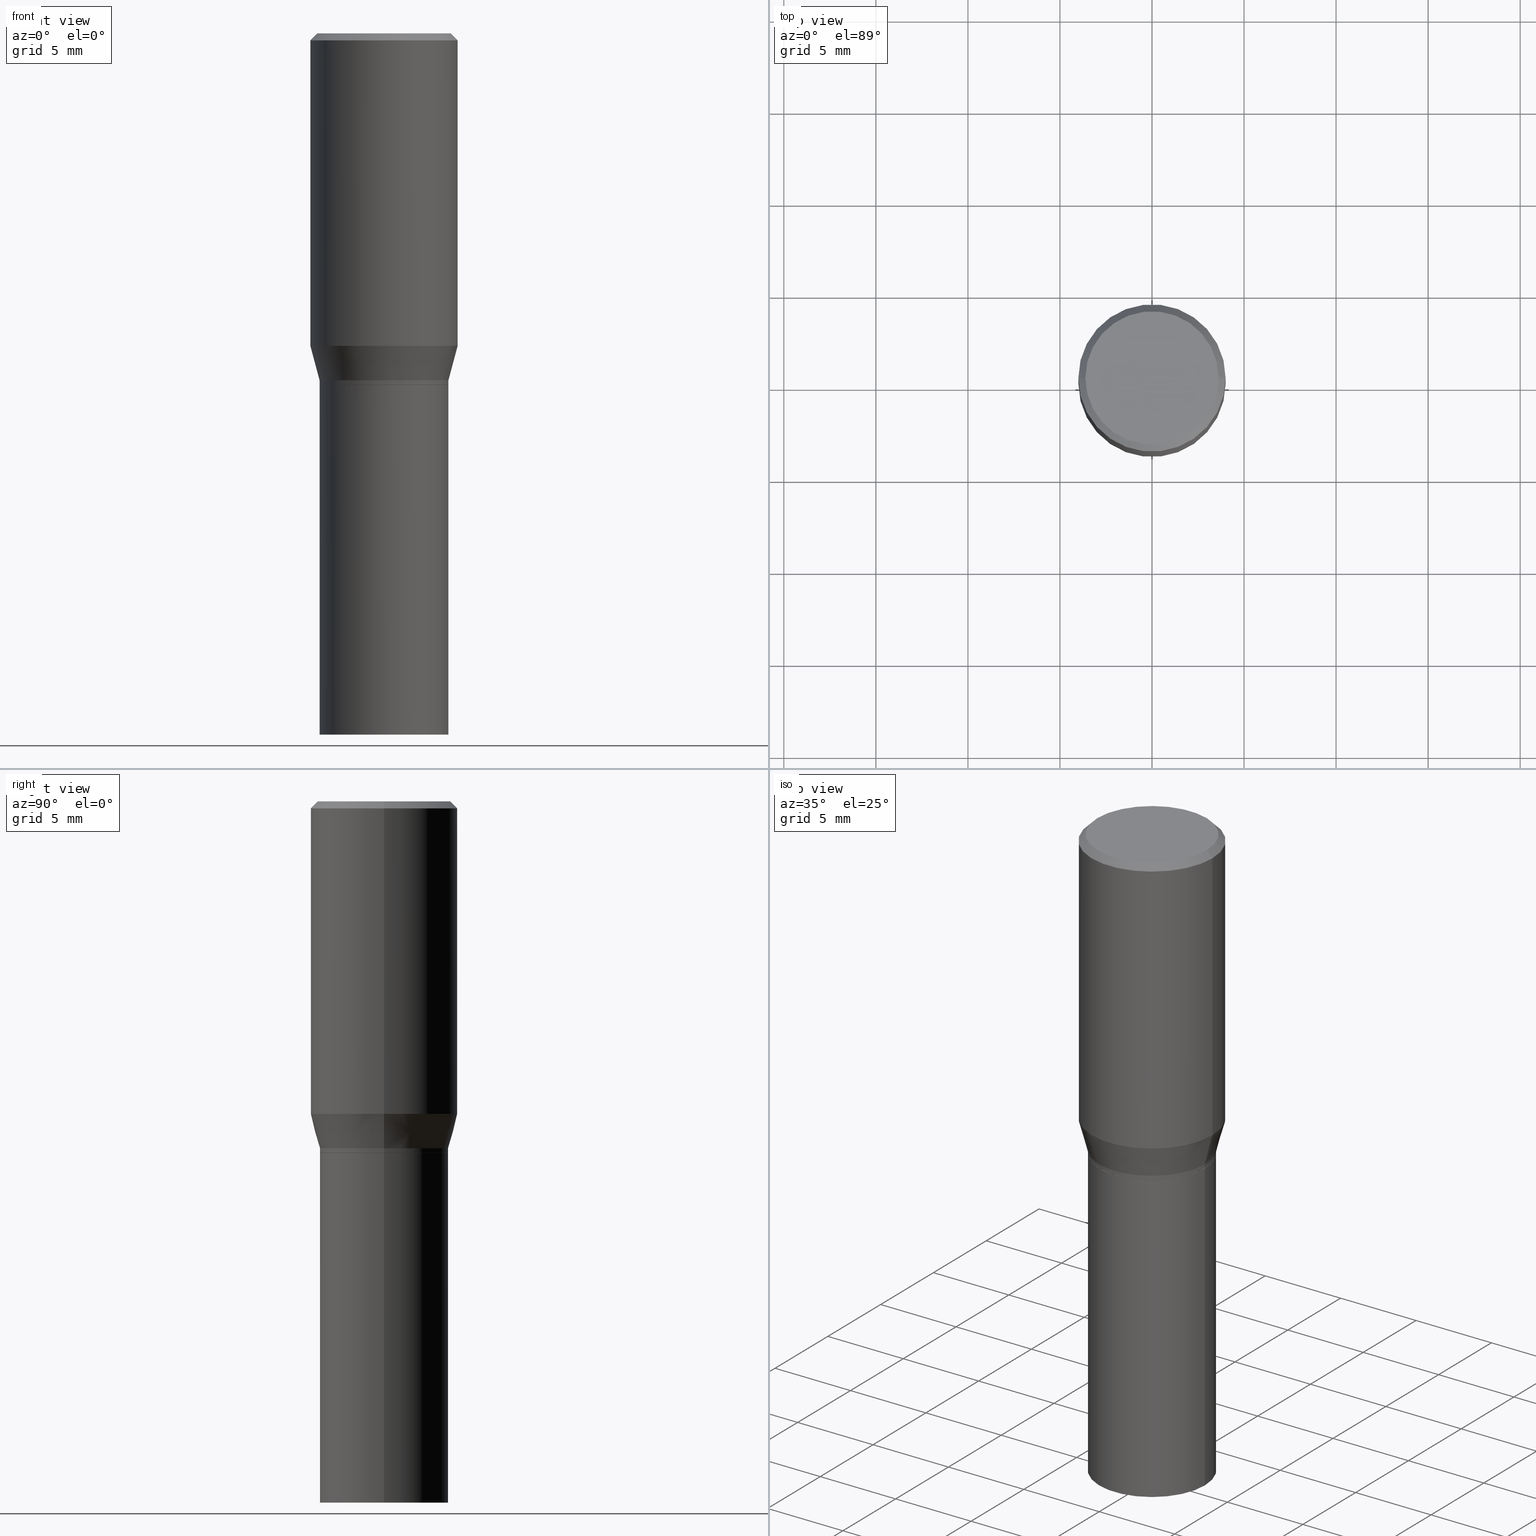
[diagram: canonical four-view strip — front | top / right | iso, engineering-drawing reading convention]
A machine part, canonical four-view strip (front | top / right | iso — engineering-drawing reading convention). The complete STEP part file that produces these views, byte-faithful:
ISO-10303-21;
HEADER;
FILE_DESCRIPTION (( 'STEP AP203' ),
    '1' );
FILE_NAME ('40345.STEP',
    '2024-03-12T19:12:00',
    ( '' ),
    ( '' ),
    'SwSTEP 2.0',
    'SolidWorks 2023',
    '' );
FILE_SCHEMA (( 'CONFIG_CONTROL_DESIGN' ));
ENDSEC;

DATA;
#1 = FACE_OUTER_BOUND ( 'NONE', #12, .T. ) ;
#2 = CARTESIAN_POINT ( 'NONE',  ( -0.1378000000000000336, 9.791278898774182947E-16, -6.778292554371261435E-30 ) ) ;
#3 = ADVANCED_FACE ( 'NONE', ( #30 ), #376, .T. ) ;
#4 = AXIS2_PLACEMENT_3D ( 'NONE', #62, #185, #423 ) ;
#5 = CIRCLE ( 'NONE', #394, 0.1575000000000000289 ) ;
#6 = DIRECTION ( 'NONE',  ( -2.445468806185136597E-29, 3.491481338843145583E-15, 1.000000000000000000 ) ) ;
#7 = CARTESIAN_POINT ( 'NONE',  ( -0.1575000000000000289, -1.214875745319705316E-15, -0.6684785990908935771 ) ) ;
#8 = ORIENTED_EDGE ( 'NONE', *, *, #14, .T. ) ;
#9 = DIRECTION ( 'NONE',  ( 1.000000000000000000, -6.982962677686266711E-15, 0.000000000000000000 ) ) ;
#10 = AXIS2_PLACEMENT_3D ( 'NONE', #267, #83, #96 ) ;
#11 = DIRECTION ( 'NONE',  ( -2.445468806185136597E-29, 3.491481338843145583E-15, 1.000000000000000000 ) ) ;
#12 = EDGE_LOOP ( 'NONE', ( #170, #366, #415, #61 ) ) ;
#13 = VERTEX_POINT ( 'NONE', #393 ) ;
#14 = EDGE_CURVE ( 'NONE', #442, #450, #117, .T. ) ;
#15 = LINE ( 'NONE', #343, #160 ) ;
#16 = CYLINDRICAL_SURFACE ( 'NONE', #437, 0.1575000000000000289 ) ;
#17 = APPLICATION_CONTEXT ( 'configuration controlled 3d designs of mechanical parts and assemblies' ) ;
#18 = ORIENTED_EDGE ( 'NONE', *, *, #282, .F. ) ;
#19 = DIRECTION ( 'NONE',  ( -2.445468806185136597E-29, 3.491481338843145583E-15, 1.000000000000000000 ) ) ;
#20 =( NAMED_UNIT ( * ) SI_UNIT ( $, .STERADIAN. ) SOLID_ANGLE_UNIT ( ) );
#21 = DESIGN_CONTEXT ( 'detailed design', #262, 'design' ) ;
#22 = ORIENTED_EDGE ( 'NONE', *, *, #139, .T. ) ;
#23 = CIRCLE ( 'NONE', #287, 0.1424999999999999878 ) ;
#24 = ORIENTED_EDGE ( 'NONE', *, *, #312, .F. ) ;
#25 = PERSON_AND_ORGANIZATION ( #215, #87 ) ;
#26 = ORIENTED_EDGE ( 'NONE', *, *, #339, .T. ) ;
#27 = EDGE_CURVE ( 'NONE', #442, #286, #418, .T. ) ;
#28 = CONICAL_SURFACE ( 'NONE', #306, 0.1373000000000000054, 0.7853981633974653764 ) ;
#29 = LOCAL_TIME ( 15, 12, 0.000000000000000000, #207 ) ;
#30 = FACE_OUTER_BOUND ( 'NONE', #125, .T. ) ;
#31 = DIRECTION ( 'NONE',  ( 0.7071067811865595631, -2.468850131082382884E-15, 0.7071067811865354713 ) ) ;
#32 = PERSON_AND_ORGANIZATION ( #215, #87 ) ;
#33 = ORIENTED_EDGE ( 'NONE', *, *, #406, .F. ) ;
#34 = VECTOR ( 'NONE', #171, 39.37007874015748143 ) ;
#35 = PLANE ( 'NONE',  #413 ) ;
#36 = ADVANCED_FACE ( 'NONE', ( #64 ), #272, .F. ) ;
#37 = ADVANCED_BREP_SHAPE_REPRESENTATION ( '40345', ( #129, #433, #49 ), #293 ) ;
#38 = ORIENTED_EDGE ( 'NONE', *, *, #377, .T. ) ;
#39 = DIRECTION ( 'NONE',  ( -2.445468806185136597E-29, 3.491481338843145583E-15, 1.000000000000000000 ) ) ;
#40 = CC_DESIGN_APPROVAL ( #389, ( #103 ) ) ;
#41 = ORIENTED_EDGE ( 'NONE', *, *, #440, .F. ) ;
#42 = DIRECTION ( 'NONE',  ( 1.000000000000000000, -6.982962677686265922E-15, 0.000000000000000000 ) ) ;
#43 = EDGE_LOOP ( 'NONE', ( #320, #76, #365, #443 ) ) ;
#44 = DIRECTION ( 'NONE',  ( -2.445468806185136597E-29, 3.491481338843145583E-15, 1.000000000000000000 ) ) ;
#45 = CC_DESIGN_DATE_AND_TIME_ASSIGNMENT ( #184, #105, ( #157 ) ) ;
#46 = DIRECTION ( 'NONE',  ( -2.445468806185136597E-29, 3.491481338843145583E-15, 1.000000000000000000 ) ) ;
#47 = DIRECTION ( 'NONE',  ( -2.445468806185136877E-29, 3.491481338843145188E-15, 1.000000000000000000 ) ) ;
#48 = DIRECTION ( 'NONE',  ( -2.445468806185136597E-29, 3.491481338843145583E-15, 1.000000000000000000 ) ) ;
#49 = AXIS2_PLACEMENT_3D ( 'NONE', #271, #126, #414 ) ;
#50 = EDGE_CURVE ( 'NONE', #99, #214, #327, .T. ) ;
#51 = CARTESIAN_POINT ( 'NONE',  ( -0.1424999999999999878, 1.021258291611616073E-15, -2.213690298435961603E-16 ) ) ;
#52 =( LENGTH_UNIT ( ) NAMED_UNIT ( * ) SI_UNIT ( $, .METRE. ) );
#53 = DIRECTION ( 'NONE',  ( 1.000000000000000000, -6.982962677686267499E-15, 4.876176775795935232E-29 ) ) ;
#54 = EDGE_CURVE ( 'NONE', #248, #250, #299, .T. ) ;
#55 = LINE ( 'NONE', #318, #78 ) ;
#56 = DIRECTION ( 'NONE',  ( 1.000000000000000000, -6.982962677686266711E-15, 4.874020801377837404E-29 ) ) ;
#57 = VECTOR ( 'NONE', #31, 39.37007874015748143 ) ;
#58 = PERSON_AND_ORGANIZATION ( #215, #87 ) ;
#59 = CARTESIAN_POINT ( 'NONE',  ( 0.1378000000000000058, -6.199474265249886443E-15, -1.500000000000000222 ) ) ;
#60 = SHAPE_DEFINITION_REPRESENTATION ( #458, #37 ) ;
#61 = ORIENTED_EDGE ( 'NONE', *, *, #372, .F. ) ;
#62 = CARTESIAN_POINT ( 'NONE',  ( 1.837769807848130011E-29, -2.623848226140623599E-15, -0.7515000000000000568 ) ) ;
#63 = DIRECTION ( 'NONE',  ( -2.438088387897960049E-29, 3.491481338843145188E-15, 1.000000000000000000 ) ) ;
#64 = FACE_OUTER_BOUND ( 'NONE', #334, .T. ) ;
#65 = DIRECTION ( 'NONE',  ( -2.445468806185136877E-29, 3.491481338843145188E-15, 1.000000000000000000 ) ) ;
#66 = DIRECTION ( 'NONE',  ( -2.445468806185136877E-29, 3.491481338843145188E-15, 1.000000000000000000 ) ) ;
#67 = ORIENTED_EDGE ( 'NONE', *, *, #465, .F. ) ;
#68 = DIRECTION ( 'NONE',  ( 1.000000000000000000, -6.982962677686265922E-15, 4.876176775795935793E-29 ) ) ;
#69 = CARTESIAN_POINT ( 'NONE',  ( 1.814537854189371548E-29, -2.590679153421614242E-15, -0.7420000000000002149 ) ) ;
#70 = FACE_OUTER_BOUND ( 'NONE', #90, .T. ) ;
#71 = DIRECTION ( 'NONE',  ( 1.000000000000000000, -6.982962677686267499E-15, 4.876176775795935793E-29 ) ) ;
#72 = DIRECTION ( 'NONE',  ( -2.445468806185136597E-29, 3.491481338843145583E-15, 1.000000000000000000 ) ) ;
#73 = AXIS2_PLACEMENT_3D ( 'NONE', #350, #39, #329 ) ;
#74 = CIRCLE ( 'NONE', #259, 0.1575000000000000011 ) ;
#75 = FACE_OUTER_BOUND ( 'NONE', #80, .T. ) ;
#76 = ORIENTED_EDGE ( 'NONE', *, *, #322, .T. ) ;
#77 = ORIENTED_EDGE ( 'NONE', *, *, #50, .F. ) ;
#78 = VECTOR ( 'NONE', #65, 39.37007874015748143 ) ;
#79 = ADVANCED_FACE ( 'NONE', ( #295 ), #199, .T. ) ;
#80 = EDGE_LOOP ( 'NONE', ( #77, #412, #148, #243 ) ) ;
#81 = DIRECTION ( 'NONE',  ( 1.000000000000000000, -6.982962677686267499E-15, 0.000000000000000000 ) ) ;
#82 = CARTESIAN_POINT ( 'NONE',  ( 3.668203209277705088E-31, -5.237222008264718399E-17, -0.01499999999999999944 ) ) ;
#83 = DIRECTION ( 'NONE',  ( -2.445468806185136597E-29, 3.491481338843145583E-15, 1.000000000000000000 ) ) ;
#84 = CARTESIAN_POINT ( 'NONE',  ( 0.000000000000000000, 0.000000000000000000, 0.000000000000000000 ) ) ;
#85 = FACE_OUTER_BOUND ( 'NONE', #360, .T. ) ;
#86 = CONICAL_SURFACE ( 'NONE', #335, 0.1575000000000000011, 0.7853981633974554954 ) ;
#87 = ORGANIZATION ( 'UNSPECIFIED', 'UNSPECIFIED', '' ) ;
#88 = DIRECTION ( 'NONE',  ( -2.445468806185136597E-29, 3.491481338843145583E-15, 1.000000000000000000 ) ) ;
#89 = MECHANICAL_CONTEXT ( 'NONE', #17, 'mechanical' ) ;
#90 = EDGE_LOOP ( 'NONE', ( #24, #444, #330, #228 ) ) ;
#91 = DIRECTION ( 'NONE',  ( -2.445468806185136597E-29, 3.491481338843145583E-15, 1.000000000000000000 ) ) ;
#92 = ORIENTED_EDGE ( 'NONE', *, *, #173, .F. ) ;
#93 = CALENDAR_DATE ( 2024, 12, 3 ) ;
#94 = CC_DESIGN_DATE_AND_TIME_ASSIGNMENT ( #321, #387, ( #103 ) ) ;
#95 = ADVANCED_FACE ( 'NONE', ( #409 ), #16, .T. ) ;
#96 = DIRECTION ( 'NONE',  ( 1.000000000000000000, -6.982962677686267499E-15, 4.876176775795935232E-29 ) ) ;
#97 = PERSON_AND_ORGANIZATION ( #215, #87 ) ;
#98 = PERSON_AND_ORGANIZATION ( #215, #87 ) ;
#99 = VERTEX_POINT ( 'NONE', #204 ) ;
#100 = CARTESIAN_POINT ( 'NONE',  ( 0.000000000000000000, 0.000000000000000000, 0.000000000000000000 ) ) ;
#101 = APPROVAL ( #219, 'UNSPECIFIED' ) ;
#102 = CIRCLE ( 'NONE', #111, 0.1373000000000000054 ) ;
#103 = SECURITY_CLASSIFICATION ( '', '', #427 ) ;
#104 = ADVANCED_FACE ( 'NONE', ( #1 ), #28, .T. ) ;
#105 = DATE_TIME_ROLE ( 'creation_date' ) ;
#106 = ORIENTED_EDGE ( 'NONE', *, *, #54, .T. ) ;
#107 = CYLINDRICAL_SURFACE ( 'NONE', #73, 0.1378000000000000058 ) ;
#108 = CYLINDRICAL_SURFACE ( 'NONE', #244, 0.1378000000000000058 ) ;
#109 = DIRECTION ( 'NONE',  ( -1.000000000000000000, 6.982962677686265922E-15, -4.876176775795935793E-29 ) ) ;
#110 = CARTESIAN_POINT ( 'NONE',  ( 0.1377999999999999781, -3.552931410406782114E-15, -0.7420000000000002149 ) ) ;
#111 = AXIS2_PLACEMENT_3D ( 'NONE', #308, #48, #380 ) ;
#112 = CONICAL_SURFACE ( 'NONE', #420, 0.1377999999999999781, 0.2617993877991510177 ) ;
#113 = DIRECTION ( 'NONE',  ( 1.000000000000000000, -6.982962677686265922E-15, 0.000000000000000000 ) ) ;
#114 = CYLINDRICAL_SURFACE ( 'NONE', #353, 0.1378000000000000336 ) ;
#115 = ORIENTED_EDGE ( 'NONE', *, *, #149, .F. ) ;
#116 = DIRECTION ( 'NONE',  ( 1.000000000000000000, -6.982962677686265922E-15, 0.000000000000000000 ) ) ;
#117 = CIRCLE ( 'NONE', #381, 0.1424999999999999878 ) ;
#118 = AXIS2_PLACEMENT_3D ( 'NONE', #408, #164, #9 ) ;
#119 = ADVANCED_FACE ( 'NONE', ( #430 ), #108, .T. ) ;
#120 = DIRECTION ( 'NONE',  ( 1.000000000000000000, -6.982962677686267499E-15, 0.000000000000000000 ) ) ;
#121 = VERTEX_POINT ( 'NONE', #266 ) ;
#122 = PERSON_AND_ORGANIZATION_ROLE ( 'design_owner' ) ;
#123 = DIRECTION ( 'NONE',  ( -2.445468806185136597E-29, 3.491481338843145583E-15, 1.000000000000000000 ) ) ;
#124 = DIRECTION ( 'NONE',  ( 1.000000000000000000, -6.982962677686267499E-15, 0.000000000000000000 ) ) ;
#125 = EDGE_LOOP ( 'NONE', ( #26, #230, #33, #296 ) ) ;
#126 = DIRECTION ( 'NONE',  ( 0.000000000000000000, 0.000000000000000000, 1.000000000000000000 ) ) ;
#127 = DIRECTION ( 'NONE',  ( -0.7071067811865526798, 2.468850131082310309E-15, -0.7071067811865424657 ) ) ;
#128 = VECTOR ( 'NONE', #357, 39.37007874015748143 ) ;
#129 = MANIFOLD_SOLID_BREP ( 'Body-Move/Copy2[1]', #178 ) ;
#130 = UNCERTAINTY_MEASURE_WITH_UNIT (LENGTH_MEASURE( 1.000000000000000082E-05 ), #378, 'distance_accuracy_value', 'NONE');
#131 = CARTESIAN_POINT ( 'NONE',  ( -0.1378000000000000058, 9.791278898774180975E-16, -6.778292554371260034E-30 ) ) ;
#132 = ORIENTED_EDGE ( 'NONE', *, *, #375, .F. ) ;
#133 = EDGE_CURVE ( 'NONE', #450, #363, #405, .T. ) ;
#134 = VERTEX_POINT ( 'NONE', #169 ) ;
#135 = LINE ( 'NONE', #280, #57 ) ;
#136 = AXIS2_PLACEMENT_3D ( 'NONE', #82, #195, #263 ) ;
#137 = LOCAL_TIME ( 15, 12, 0.000000000000000000, #422 ) ;
#138 = DATE_AND_TIME ( #283, #29 ) ;
#139 = EDGE_CURVE ( 'NONE', #121, #142, #191, .T. ) ;
#140 = EDGE_CURVE ( 'NONE', #363, #286, #452, .T. ) ;
#141 = EDGE_LOOP ( 'NONE', ( #8, #426 ) ) ;
#142 = VERTEX_POINT ( 'NONE', #232 ) ;
#143 = FACE_OUTER_BOUND ( 'NONE', #302, .T. ) ;
#144 = CARTESIAN_POINT ( 'NONE',  ( 1.838992542251222813E-29, -2.625593966810045497E-15, -0.7520000000000001128 ) ) ;
#145 = CALENDAR_DATE ( 2024, 12, 3 ) ;
#146 = ORIENTED_EDGE ( 'NONE', *, *, #14, .F. ) ;
#147 = CARTESIAN_POINT ( 'NONE',  ( -0.1575000000000000011, -7.407157829009734663E-17, -0.01499999999999999944 ) ) ;
#148 = ORIENTED_EDGE ( 'NONE', *, *, #453, .T. ) ;
#149 = EDGE_CURVE ( 'NONE', #13, #182, #436, .T. ) ;
#150 = ORIENTED_EDGE ( 'NONE', *, *, #149, .T. ) ;
#151 = CARTESIAN_POINT ( 'NONE',  ( 3.668203209277705088E-31, -5.237222008264718399E-17, -0.01499999999999999944 ) ) ;
#152 = APPROVAL_DATE_TIME ( #310, #260 ) ;
#153 = AXIS2_PLACEMENT_3D ( 'NONE', #246, #63, #435 ) ;
#154 = DIRECTION ( 'NONE',  ( -2.445468806185136597E-29, 3.491481338843145583E-15, 1.000000000000000000 ) ) ;
#155 = DIMENSIONAL_EXPONENTS ( 1.000000000000000000, 0.000000000000000000, 0.000000000000000000, 0.000000000000000000, 0.000000000000000000, 0.000000000000000000, 0.000000000000000000 ) ;
#156 = CARTESIAN_POINT ( 'NONE',  ( 9.950721815702929274E-16, 0.1424999999999999878, -6.082206057069428675E-16 ) ) ;
#157 = PRODUCT_DEFINITION ( 'UNKNOWN', '', #403, #21 ) ;
#158 = DIRECTION ( 'NONE',  ( -2.445468806185136877E-29, 3.491481338843145188E-15, 1.000000000000000000 ) ) ;
#159 = AXIS2_PLACEMENT_3D ( 'NONE', #211, #245, #68 ) ;
#160 = VECTOR ( 'NONE', #369, 39.37007874015748143 ) ;
#161 = DIRECTION ( 'NONE',  ( 1.000000000000000000, -6.982962677686267499E-15, 0.000000000000000000 ) ) ;
#162 = ORIENTED_EDGE ( 'NONE', *, *, #317, .F. ) ;
#163 = CARTESIAN_POINT ( 'NONE',  ( 0.1575000000000000289, -3.433797175877450400E-15, -0.6684785990908935771 ) ) ;
#164 = DIRECTION ( 'NONE',  ( -2.445468806185136597E-29, 3.491481338843145583E-15, 1.000000000000000000 ) ) ;
#165 = DIRECTION ( 'NONE',  ( -2.445468806185136597E-29, 3.491481338843145583E-15, 1.000000000000000000 ) ) ;
#166 = ORIENTED_EDGE ( 'NONE', *, *, #216, .F. ) ;
#167 = ORIENTED_EDGE ( 'NONE', *, *, #175, .F. ) ;
#168 = CARTESIAN_POINT ( 'NONE',  ( 0.1424999999999999878, -1.055260809707053708E-15, -2.213690298435819608E-16 ) ) ;
#169 = CARTESIAN_POINT ( 'NONE',  ( 0.1378000000000000613, -3.586100483125791470E-15, -0.7515000000000000568 ) ) ;
#170 = ORIENTED_EDGE ( 'NONE', *, *, #200, .T. ) ;
#171 = DIRECTION ( 'NONE',  ( -0.7071067811865595631, 7.493145998870398336E-15, 0.7071067811865354713 ) ) ;
#172 = VECTOR ( 'NONE', #66, 39.37007874015748143 ) ;
#173 = EDGE_CURVE ( 'NONE', #248, #286, #425, .T. ) ;
#174 = APPLICATION_PROTOCOL_DEFINITION ( 'international standard', 'config_control_design', 1994, #262 ) ;
#175 = EDGE_CURVE ( 'NONE', #404, #99, #268, .T. ) ;
#176 = APPROVAL_DATE_TIME ( #281, #101 ) ;
#177 = CARTESIAN_POINT ( 'NONE',  ( 1.838992542251222813E-29, -2.625593966810045497E-15, -0.7520000000000001128 ) ) ;
#178 = CLOSED_SHELL ( 'NONE', ( #237, #36, #119, #290 ) ) ;
#179 = VECTOR ( 'NONE', #336, 39.37007874015748143 ) ;
#180 = COORDINATED_UNIVERSAL_TIME_OFFSET ( 5, 0, .BEHIND. ) ;
#181 = PRODUCT_RELATED_PRODUCT_CATEGORY ( 'detail', '', ( #351 ) ) ;
#182 = VERTEX_POINT ( 'NONE', #59 ) ;
#183 = EDGE_LOOP ( 'NONE', ( #284, #270 ) ) ;
#184 = DATE_AND_TIME ( #145, #338 ) ;
#185 = DIRECTION ( 'NONE',  ( -2.445468806185136597E-29, 3.491481338843145583E-15, 1.000000000000000000 ) ) ;
#186 = FACE_OUTER_BOUND ( 'NONE', #385, .T. ) ;
#187 = DIRECTION ( 'NONE',  ( -2.445468806185136597E-29, 3.491481338843145583E-15, 1.000000000000000000 ) ) ;
#188 = ORIENTED_EDGE ( 'NONE', *, *, #400, .T. ) ;
#189 = CARTESIAN_POINT ( 'NONE',  ( 1.634743561679119835E-29, -2.333980554141863708E-15, -0.6684785990908935771 ) ) ;
#190 = CC_DESIGN_PERSON_AND_ORGANIZATION_ASSIGNMENT ( #256, #210, ( #403 ) ) ;
#191 = CIRCLE ( 'NONE', #432, 0.1378000000000000058 ) ;
#192 = CIRCLE ( 'NONE', #370, 0.1377999999999999781 ) ;
#193 = ORIENTED_EDGE ( 'NONE', *, *, #27, .T. ) ;
#194 = ORIENTED_EDGE ( 'NONE', *, *, #139, .F. ) ;
#195 = DIRECTION ( 'NONE',  ( -2.445468806185136597E-29, 3.491481338843145583E-15, 1.000000000000000000 ) ) ;
#196 = DIRECTION ( 'NONE',  ( 1.000000000000000000, -6.982962677686266711E-15, 4.874020801377837404E-29 ) ) ;
#197 = ORIENTED_EDGE ( 'NONE', *, *, #54, .F. ) ;
#198 = CARTESIAN_POINT ( 'NONE',  ( 3.668203209277705088E-31, -5.237222008264718399E-17, -0.01499999999999999944 ) ) ;
#199 = CONICAL_SURFACE ( 'NONE', #361, 0.1377999999999999781, 0.2617993877991510177 ) ;
#200 = EDGE_CURVE ( 'NONE', #438, #404, #102, .T. ) ;
#201 = DIRECTION ( 'NONE',  ( -1.000000000000000000, 6.982962677686265922E-15, -4.876176775795935793E-29 ) ) ;
#202 = CARTESIAN_POINT ( 'NONE',  ( 0.1377999999999999781, -3.552931410406782114E-15, -0.7420000000000002149 ) ) ;
#203 = CARTESIAN_POINT ( 'NONE',  ( 0.1378000000000000336, -9.622522569851678714E-16, 6.719371597046801339E-30 ) ) ;
#204 = CARTESIAN_POINT ( 'NONE',  ( -0.1378000000000000613, -1.644720336263205502E-15, -0.7515000000000000568 ) ) ;
#205 = DIRECTION ( 'NONE',  ( 1.000000000000000000, -6.982962677686267499E-15, 0.000000000000000000 ) ) ;
#206 = APPROVAL_PERSON_ORGANIZATION ( #58, #260, #461 ) ;
#207 = COORDINATED_UNIVERSAL_TIME_OFFSET ( 5, 0, .BEHIND. ) ;
#208 = EDGE_CURVE ( 'NONE', #382, #250, #323, .T. ) ;
#209 = ORIENTED_EDGE ( 'NONE', *, *, #140, .F. ) ;
#210 = PERSON_AND_ORGANIZATION_ROLE ( 'design_supplier' ) ;
#211 = CARTESIAN_POINT ( 'NONE',  ( 3.576687321579069994E-29, -5.368277968210015545E-15, -1.500000000000000222 ) ) ;
#212 = ORIENTED_EDGE ( 'NONE', *, *, #173, .T. ) ;
#213 = CARTESIAN_POINT ( 'NONE',  ( 1.837769807848130011E-29, -2.623848226140623599E-15, -0.7515000000000000568 ) ) ;
#214 = VERTEX_POINT ( 'NONE', #224 ) ;
#215 = PERSON ( 'UNSPECIFIED', 'UNSPECIFIED', 'UNSPECIFIED', ('UNSPECIFIED'), ('UNSPECIFIED'), ('UNSPECIFIED') ) ;
#216 = EDGE_CURVE ( 'NONE', #142, #121, #401, .T. ) ;
#217 = CIRCLE ( 'NONE', #4, 0.1378000000000000613 ) ;
#218 = DIRECTION ( 'NONE',  ( -2.445468806185136597E-29, 3.491481338843145583E-15, 1.000000000000000000 ) ) ;
#219 = APPROVAL_STATUS ( 'not_yet_approved' ) ;
#220 = APPROVAL_ROLE ( '' ) ;
#221 = DIRECTION ( 'NONE',  ( 1.000000000000000000, -6.982962677686266711E-15, 0.000000000000000000 ) ) ;
#222 = CC_DESIGN_APPROVAL ( #101, ( #403 ) ) ;
#223 = DIRECTION ( 'NONE',  ( -1.000000000000000000, 6.982962677686265922E-15, 0.000000000000000000 ) ) ;
#224 = CARTESIAN_POINT ( 'NONE',  ( -0.1377999999999999781, -1.413213504431950829E-15, -0.7420000000000002149 ) ) ;
#225 = ADVANCED_FACE ( 'NONE', ( #261 ), #399, .F. ) ;
#226 = CLOSED_SHELL ( 'NONE', ( #3, #104, #303, #95, #79, #411, #342, #236, #225, #341, #397, #305 ) ) ;
#227 = CC_DESIGN_APPROVAL ( #260, ( #157 ) ) ;
#228 = ORIENTED_EDGE ( 'NONE', *, *, #27, .F. ) ;
#229 = DIRECTION ( 'NONE',  ( 1.000000000000000000, -6.982962677686267499E-15, 4.876176775795935793E-29 ) ) ;
#230 = ORIENTED_EDGE ( 'NONE', *, *, #50, .T. ) ;
#231 = DIRECTION ( 'NONE',  ( -2.445468806185136597E-29, 3.491481338843145583E-15, 1.000000000000000000 ) ) ;
#232 = CARTESIAN_POINT ( 'NONE',  ( -0.1378000000000000058, -2.952280097659963937E-15, -0.7520000000000001128 ) ) ;
#233 = CARTESIAN_POINT ( 'NONE',  ( -0.1373000000000000054, -1.647369563437316505E-15, -0.7520000000000001128 ) ) ;
#234 = CIRCLE ( 'NONE', #328, 0.1378000000000000058 ) ;
#235 = APPROVAL_PERSON_ORGANIZATION ( #25, #389, #220 ) ;
#236 = ADVANCED_FACE ( 'NONE', ( #143 ), #428, .T. ) ;
#237 = ADVANCED_FACE ( 'NONE', ( #186 ), #107, .T. ) ;
#238 = CARTESIAN_POINT ( 'NONE',  ( 1.634743561679119835E-29, -2.333980554141863708E-15, -0.6684785990908935771 ) ) ;
#239 = DIRECTION ( 'NONE',  ( -2.445468806185136597E-29, 3.491481338843145583E-15, 1.000000000000000000 ) ) ;
#240 = ORIENTED_EDGE ( 'NONE', *, *, #282, .T. ) ;
#241 = DIRECTION ( 'NONE',  ( 1.000000000000000000, -6.982962677686265922E-15, 0.000000000000000000 ) ) ;
#242 = AXIS2_PLACEMENT_3D ( 'NONE', #332, #46, #42 ) ;
#243 = ORIENTED_EDGE ( 'NONE', *, *, #400, .F. ) ;
#244 = AXIS2_PLACEMENT_3D ( 'NONE', #314, #165, #229 ) ;
#245 = DIRECTION ( 'NONE',  ( -2.438088387897960049E-29, 3.491481338843145188E-15, 1.000000000000000000 ) ) ;
#246 = CARTESIAN_POINT ( 'NONE',  ( 1.838992542251222813E-29, -2.625593966810045497E-15, -0.7520000000000001128 ) ) ;
#247 = CARTESIAN_POINT ( 'NONE',  ( -0.1373000000000000054, -1.650018790611428101E-15, -0.7520000000000001128 ) ) ;
#248 = VERTEX_POINT ( 'NONE', #7 ) ;
#249 = APPROVAL_STATUS ( 'not_yet_approved' ) ;
#250 = VERTEX_POINT ( 'NONE', #163 ) ;
#251 = PERSON_AND_ORGANIZATION_ROLE ( 'classification_officer' ) ;
#252 = DIRECTION ( 'NONE',  ( 1.000000000000000000, -6.982962677686267499E-15, 4.876176775795935793E-29 ) ) ;
#253 = VECTOR ( 'NONE', #158, 39.37007874015748143 ) ;
#254 = LOCAL_TIME ( 15, 12, 0.000000000000000000, #316 ) ;
#255 = DIRECTION ( 'NONE',  ( -2.445468806185136597E-29, 3.491481338843145583E-15, 1.000000000000000000 ) ) ;
#256 = PERSON_AND_ORGANIZATION ( #215, #87 ) ;
#257 = FACE_OUTER_BOUND ( 'NONE', #331, .T. ) ;
#258 = AXIS2_PLACEMENT_3D ( 'NONE', #156, #431, #201 ) ;
#259 = AXIS2_PLACEMENT_3D ( 'NONE', #198, #19, #241 ) ;
#260 = APPROVAL ( #249, 'UNSPECIFIED' ) ;
#261 = FACE_OUTER_BOUND ( 'NONE', #141, .T. ) ;
#262 = APPLICATION_CONTEXT ( 'configuration controlled 3d designs of mechanical parts and assemblies' ) ;
#263 = DIRECTION ( 'NONE',  ( 1.000000000000000000, -6.982962677686265922E-15, 0.000000000000000000 ) ) ;
#264 = AXIS2_PLACEMENT_3D ( 'NONE', #144, #218, #319 ) ;
#265 = LINE ( 'NONE', #203, #179 ) ;
#266 = CARTESIAN_POINT ( 'NONE',  ( 0.1378000000000000058, -3.587846223795212974E-15, -0.7520000000000001128 ) ) ;
#267 = CARTESIAN_POINT ( 'NONE',  ( 0.000000000000000000, 0.000000000000000000, 0.000000000000000000 ) ) ;
#268 = LINE ( 'NONE', #247, #34 ) ;
#269 = CARTESIAN_POINT ( 'NONE',  ( 1.814537854189371548E-29, -2.590679153421614242E-15, -0.7420000000000002149 ) ) ;
#270 = ORIENTED_EDGE ( 'NONE', *, *, #356, .F. ) ;
#271 = CARTESIAN_POINT ( 'NONE',  ( 0.000000000000000000, 0.000000000000000000, 0.000000000000000000 ) ) ;
#272 = PLANE ( 'NONE',  #159 ) ;
#273 = VECTOR ( 'NONE', #337, 39.37007874015748143 ) ;
#274 = APPLICATION_PROTOCOL_DEFINITION ( 'international standard', 'config_control_design', 1994, #17 ) ;
#275 = CARTESIAN_POINT ( 'NONE',  ( 1.814537854189371548E-29, -2.590679153421614242E-15, -0.7420000000000002149 ) ) ;
#276 = CARTESIAN_POINT ( 'NONE',  ( 5.413510571379637089E-45, -7.729058366967027209E-31, -2.213690298435891099E-16 ) ) ;
#277 = PERSON_AND_ORGANIZATION_ROLE ( 'creator' ) ;
#278 = AXIS2_PLACEMENT_3D ( 'NONE', #189, #6, #161 ) ;
#279 = EDGE_LOOP ( 'NONE', ( #344, #150, #294, #166 ) ) ;
#280 = CARTESIAN_POINT ( 'NONE',  ( 0.1373000000000000054, -3.584354742456369967E-15, -0.7520000000000001128 ) ) ;
#281 = DATE_AND_TIME ( #93, #137 ) ;
#282 = EDGE_CURVE ( 'NONE', #182, #13, #234, .T. ) ;
#283 = CALENDAR_DATE ( 2024, 12, 3 ) ;
#284 = ORIENTED_EDGE ( 'NONE', *, *, #200, .F. ) ;
#285 = DIRECTION ( 'NONE',  ( 2.438088387897960049E-29, -3.491481338843145188E-15, -1.000000000000000000 ) ) ;
#286 = VERTEX_POINT ( 'NONE', #147 ) ;
#287 = AXIS2_PLACEMENT_3D ( 'NONE', #456, #11, #196 ) ;
#288 = APPROVAL_PERSON_ORGANIZATION ( #97, #101, #384 ) ;
#289 = PERSON_AND_ORGANIZATION ( #215, #87 ) ;
#290 = ADVANCED_FACE ( 'NONE', ( #257 ), #35, .F. ) ;
#291 = LINE ( 'NONE', #390, #345 ) ;
#292 = ORIENTED_EDGE ( 'NONE', *, *, #208, .T. ) ;
#293 =( GEOMETRIC_REPRESENTATION_CONTEXT ( 3 ) GLOBAL_UNCERTAINTY_ASSIGNED_CONTEXT ( ( #130 ) ) GLOBAL_UNIT_ASSIGNED_CONTEXT ( ( #378, #340, #20 ) ) REPRESENTATION_CONTEXT ( 'NONE', 'WORKASPACE' ) );
#294 = ORIENTED_EDGE ( 'NONE', *, *, #465, .T. ) ;
#295 = FACE_OUTER_BOUND ( 'NONE', #43, .T. ) ;
#296 = ORIENTED_EDGE ( 'NONE', *, *, #453, .F. ) ;
#297 = CARTESIAN_POINT ( 'NONE',  ( 0.1575000000000000011, -1.132900654731663450E-15, -0.01499999999999999944 ) ) ;
#298 = CARTESIAN_POINT ( 'NONE',  ( 3.668203209277704895E-29, -5.237222008264718177E-15, -1.500000000000000222 ) ) ;
#299 = CIRCLE ( 'NONE', #278, 0.1575000000000000289 ) ;
#300 = CARTESIAN_POINT ( 'NONE',  ( 1.838992542251222813E-29, -2.625593966810045497E-15, -0.7520000000000001128 ) ) ;
#301 = FACE_OUTER_BOUND ( 'NONE', #459, .T. ) ;
#302 = EDGE_LOOP ( 'NONE', ( #373, #146, #193, #402 ) ) ;
#303 = ADVANCED_FACE ( 'NONE', ( #70 ), #86, .T. ) ;
#304 = DIRECTION ( 'NONE',  ( -2.445468806185136597E-29, 3.491481338843145583E-15, 1.000000000000000000 ) ) ;
#305 = ADVANCED_FACE ( 'NONE', ( #75 ), #114, .T. ) ;
#306 = AXIS2_PLACEMENT_3D ( 'NONE', #177, #154, #221 ) ;
#307 = CIRCLE ( 'NONE', #346, 0.1378000000000000613 ) ;
#308 = CARTESIAN_POINT ( 'NONE',  ( 1.838992542251222813E-29, -2.625593966810045497E-15, -0.7520000000000001128 ) ) ;
#309 = PERSON_AND_ORGANIZATION ( #215, #87 ) ;
#310 = DATE_AND_TIME ( #313, #254 ) ;
#311 = CARTESIAN_POINT ( 'NONE',  ( 0.1575000000000000011, -1.152188841818234165E-15, -0.01499999999999999944 ) ) ;
#312 = EDGE_CURVE ( 'NONE', #450, #442, #23, .T. ) ;
#313 = CALENDAR_DATE ( 2024, 12, 3 ) ;
#314 = CARTESIAN_POINT ( 'NONE',  ( 0.000000000000000000, 0.000000000000000000, 0.000000000000000000 ) ) ;
#315 = AXIS2_PLACEMENT_3D ( 'NONE', #275, #239, #205 ) ;
#316 = COORDINATED_UNIVERSAL_TIME_OFFSET ( 5, 0, .BEHIND. ) ;
#317 = EDGE_CURVE ( 'NONE', #250, #363, #55, .T. ) ;
#318 = CARTESIAN_POINT ( 'NONE',  ( 0.1575000000000000289, -1.099816621735587283E-15, 7.679978421878599434E-30 ) ) ;
#319 = DIRECTION ( 'NONE',  ( 1.000000000000000000, -6.982962677686266711E-15, 0.000000000000000000 ) ) ;
#320 = ORIENTED_EDGE ( 'NONE', *, *, #406, .T. ) ;
#321 = DATE_AND_TIME ( #391, #445 ) ;
#322 = EDGE_CURVE ( 'NONE', #214, #248, #291, .T. ) ;
#323 = LINE ( 'NONE', #110, #128 ) ;
#324 = CARTESIAN_POINT ( 'NONE',  ( 1.838992542251222813E-29, -2.625593966810045497E-15, -0.7520000000000001128 ) ) ;
#325 = CARTESIAN_POINT ( 'NONE',  ( 3.668203209277705088E-31, -5.237222008264718399E-17, -0.01499999999999999944 ) ) ;
#326 = CC_DESIGN_PERSON_AND_ORGANIZATION_ASSIGNMENT ( #98, #277, ( #403 ) ) ;
#327 = LINE ( 'NONE', #2, #253 ) ;
#328 = AXIS2_PLACEMENT_3D ( 'NONE', #298, #187, #463 ) ;
#329 = DIRECTION ( 'NONE',  ( 1.000000000000000000, -6.982962677686267499E-15, 4.876176775795935793E-29 ) ) ;
#330 = ORIENTED_EDGE ( 'NONE', *, *, #140, .T. ) ;
#331 = EDGE_LOOP ( 'NONE', ( #22, #352 ) ) ;
#332 = CARTESIAN_POINT ( 'NONE',  ( 3.668203209277704895E-29, -5.237222008264718177E-15, -1.500000000000000222 ) ) ;
#333 = CARTESIAN_POINT ( 'NONE',  ( -0.1575000000000000011, 1.047444401652939809E-15, -0.01499999999999999944 ) ) ;
#334 = EDGE_LOOP ( 'NONE', ( #18, #115 ) ) ;
#335 = AXIS2_PLACEMENT_3D ( 'NONE', #325, #434, #223 ) ;
#336 = DIRECTION ( 'NONE',  ( -2.445468806185136877E-29, 3.491481338843145188E-15, 1.000000000000000000 ) ) ;
#337 = DIRECTION ( 'NONE',  ( 0.7071067811865526798, -7.319954787623273400E-15, -0.7071067811865424657 ) ) ;
#338 = LOCAL_TIME ( 15, 12, 0.000000000000000000, #429 ) ;
#339 = EDGE_CURVE ( 'NONE', #134, #99, #217, .T. ) ;
#340 =( NAMED_UNIT ( * ) PLANE_ANGLE_UNIT ( ) SI_UNIT ( $, .RADIAN. ) );
#341 = ADVANCED_FACE ( 'NONE', ( #462 ), #358, .F. ) ;
#342 = ADVANCED_FACE ( 'NONE', ( #301 ), #439, .T. ) ;
#343 = CARTESIAN_POINT ( 'NONE',  ( 0.1378000000000000058, -9.622522569851676742E-16, 6.719371597046799937E-30 ) ) ;
#344 = ORIENTED_EDGE ( 'NONE', *, *, #424, .F. ) ;
#345 = VECTOR ( 'NONE', #460, 39.37007874015748143 ) ;
#346 = AXIS2_PLACEMENT_3D ( 'NONE', #213, #123, #124 ) ;
#347 = ORIENTED_EDGE ( 'NONE', *, *, #424, .T. ) ;
#348 = DIRECTION ( 'NONE',  ( 2.445468806185136597E-29, -3.491481338843145583E-15, -1.000000000000000000 ) ) ;
#349 = PERSON_AND_ORGANIZATION_ROLE ( 'creator' ) ;
#350 = CARTESIAN_POINT ( 'NONE',  ( 0.000000000000000000, 0.000000000000000000, 0.000000000000000000 ) ) ;
#351 = PRODUCT ( '40345', '40345', '', ( #89 ) ) ;
#352 = ORIENTED_EDGE ( 'NONE', *, *, #216, .T. ) ;
#353 = AXIS2_PLACEMENT_3D ( 'NONE', #371, #395, #71 ) ;
#354 = EDGE_LOOP ( 'NONE', ( #38, #212, #209, #162 ) ) ;
#355 = CONICAL_SURFACE ( 'NONE', #118, 0.1373000000000000054, 0.7853981633974653764 ) ;
#356 = EDGE_CURVE ( 'NONE', #404, #438, #464, .T. ) ;
#357 = DIRECTION ( 'NONE',  ( 0.2588190451025222938, 1.565188264969614671E-15, 0.9659258262890678681 ) ) ;
#358 = PLANE ( 'NONE',  #153 ) ;
#359 = AXIS2_PLACEMENT_3D ( 'NONE', #324, #72, #113 ) ;
#360 = EDGE_LOOP ( 'NONE', ( #167, #421, #407, #132 ) ) ;
#361 = AXIS2_PLACEMENT_3D ( 'NONE', #69, #255, #120 ) ;
#362 = ORIENTED_EDGE ( 'NONE', *, *, #317, .T. ) ;
#363 = VERTEX_POINT ( 'NONE', #311 ) ;
#364 = CC_DESIGN_PERSON_AND_ORGANIZATION_ASSIGNMENT ( #32, #251, ( #103 ) ) ;
#365 = ORIENTED_EDGE ( 'NONE', *, *, #377, .F. ) ;
#366 = ORIENTED_EDGE ( 'NONE', *, *, #175, .T. ) ;
#367 = FACE_OUTER_BOUND ( 'NONE', #388, .T. ) ;
#368 = VECTOR ( 'NONE', #127, 39.37007874015748143 ) ;
#369 = DIRECTION ( 'NONE',  ( -2.445468806185136877E-29, 3.491481338843145188E-15, 1.000000000000000000 ) ) ;
#370 = AXIS2_PLACEMENT_3D ( 'NONE', #269, #231, #410 ) ;
#371 = CARTESIAN_POINT ( 'NONE',  ( 0.000000000000000000, 0.000000000000000000, 0.000000000000000000 ) ) ;
#372 = EDGE_CURVE ( 'NONE', #438, #134, #135, .T. ) ;
#373 = ORIENTED_EDGE ( 'NONE', *, *, #133, .F. ) ;
#374 = LINE ( 'NONE', #131, #466 ) ;
#375 = EDGE_CURVE ( 'NONE', #99, #134, #307, .T. ) ;
#376 = CYLINDRICAL_SURFACE ( 'NONE', #446, 0.1378000000000000336 ) ;
#377 = EDGE_CURVE ( 'NONE', #250, #248, #5, .T. ) ;
#378 =( CONVERSION_BASED_UNIT ( 'INCH', #441 ) LENGTH_UNIT ( ) NAMED_UNIT ( #155 ) );
#379 = CC_DESIGN_PERSON_AND_ORGANIZATION_ASSIGNMENT ( #289, #349, ( #157 ) ) ;
#380 = DIRECTION ( 'NONE',  ( 1.000000000000000000, -6.982962677686266711E-15, 0.000000000000000000 ) ) ;
#381 = AXIS2_PLACEMENT_3D ( 'NONE', #276, #416, #56 ) ;
#382 = VERTEX_POINT ( 'NONE', #202 ) ;
#383 = ORIENTED_EDGE ( 'NONE', *, *, #322, .F. ) ;
#384 = APPROVAL_ROLE ( '' ) ;
#385 = EDGE_LOOP ( 'NONE', ( #240, #347, #194, #67 ) ) ;
#386 = DIRECTION ( 'NONE',  ( -1.000000000000000000, 6.982962677686265922E-15, 0.000000000000000000 ) ) ;
#387 = DATE_TIME_ROLE ( 'classification_date' ) ;
#388 = EDGE_LOOP ( 'NONE', ( #383, #188, #292, #197 ) ) ;
#389 = APPROVAL ( #451, 'UNSPECIFIED' ) ;
#390 = CARTESIAN_POINT ( 'NONE',  ( -0.1377999999999999781, -1.611551263544196737E-15, -0.7420000000000002149 ) ) ;
#391 = CALENDAR_DATE ( 2024, 12, 3 ) ;
#392 = CARTESIAN_POINT ( 'NONE',  ( -0.1575000000000000289, 1.119104808822157998E-15, -7.747322767151478386E-30 ) ) ;
#393 = CARTESIAN_POINT ( 'NONE',  ( -0.1378000000000000058, -2.952280097659963937E-15, -1.500000000000000222 ) ) ;
#394 = AXIS2_PLACEMENT_3D ( 'NONE', #238, #88, #449 ) ;
#395 = DIRECTION ( 'NONE',  ( -2.445468806185136597E-29, 3.491481338843145583E-15, 1.000000000000000000 ) ) ;
#396 = CC_DESIGN_SECURITY_CLASSIFICATION ( #103, ( #403 ) ) ;
#397 = ADVANCED_FACE ( 'NONE', ( #85 ), #355, .T. ) ;
#398 = CC_DESIGN_PERSON_AND_ORGANIZATION_ASSIGNMENT ( #309, #122, ( #351 ) ) ;
#399 = PLANE ( 'NONE',  #258 ) ;
#400 = EDGE_CURVE ( 'NONE', #214, #382, #192, .T. ) ;
#401 = CIRCLE ( 'NONE', #359, 0.1378000000000000058 ) ;
#402 = ORIENTED_EDGE ( 'NONE', *, *, #440, .T. ) ;
#403 = PRODUCT_DEFINITION_FORMATION_WITH_SPECIFIED_SOURCE ( 'ANY', '', #351, .NOT_KNOWN. ) ;
#404 = VERTEX_POINT ( 'NONE', #233 ) ;
#405 = LINE ( 'NONE', #297, #273 ) ;
#406 = EDGE_CURVE ( 'NONE', #382, #214, #448, .T. ) ;
#407 = ORIENTED_EDGE ( 'NONE', *, *, #372, .T. ) ;
#408 = CARTESIAN_POINT ( 'NONE',  ( 1.838992542251222813E-29, -2.625593966810045497E-15, -0.7520000000000001128 ) ) ;
#409 = FACE_OUTER_BOUND ( 'NONE', #354, .T. ) ;
#410 = DIRECTION ( 'NONE',  ( 1.000000000000000000, -6.982962677686267499E-15, 0.000000000000000000 ) ) ;
#411 = ADVANCED_FACE ( 'NONE', ( #367 ), #112, .T. ) ;
#412 = ORIENTED_EDGE ( 'NONE', *, *, #375, .T. ) ;
#413 = AXIS2_PLACEMENT_3D ( 'NONE', #455, #285, #109 ) ;
#414 = DIRECTION ( 'NONE',  ( 1.000000000000000000, 0.000000000000000000, 0.000000000000000000 ) ) ;
#415 = ORIENTED_EDGE ( 'NONE', *, *, #339, .F. ) ;
#416 = DIRECTION ( 'NONE',  ( -2.445468806185136597E-29, 3.491481338843145583E-15, 1.000000000000000000 ) ) ;
#417 = CARTESIAN_POINT ( 'NONE',  ( 1.814537854189371548E-29, -2.590679153421614242E-15, -0.7420000000000002149 ) ) ;
#418 = LINE ( 'NONE', #333, #368 ) ;
#419 = AXIS2_PLACEMENT_3D ( 'NONE', #151, #348, #386 ) ;
#420 = AXIS2_PLACEMENT_3D ( 'NONE', #417, #91, #81 ) ;
#421 = ORIENTED_EDGE ( 'NONE', *, *, #356, .T. ) ;
#422 = COORDINATED_UNIVERSAL_TIME_OFFSET ( 5, 0, .BEHIND. ) ;
#423 = DIRECTION ( 'NONE',  ( 1.000000000000000000, -6.982962677686267499E-15, 0.000000000000000000 ) ) ;
#424 = EDGE_CURVE ( 'NONE', #13, #142, #374, .T. ) ;
#425 = LINE ( 'NONE', #392, #172 ) ;
#426 = ORIENTED_EDGE ( 'NONE', *, *, #312, .T. ) ;
#427 = SECURITY_CLASSIFICATION_LEVEL ( 'unclassified' ) ;
#428 = CONICAL_SURFACE ( 'NONE', #419, 0.1575000000000000011, 0.7853981633974554954 ) ;
#429 = COORDINATED_UNIVERSAL_TIME_OFFSET ( 5, 0, .BEHIND. ) ;
#430 = FACE_OUTER_BOUND ( 'NONE', #279, .T. ) ;
#431 = DIRECTION ( 'NONE',  ( 2.438088387897960049E-29, -3.491481338843145188E-15, -1.000000000000000000 ) ) ;
#432 = AXIS2_PLACEMENT_3D ( 'NONE', #300, #44, #116 ) ;
#433 = MANIFOLD_SOLID_BREP ( 'Body-Move/Copy2[2]', #226 ) ;
#434 = DIRECTION ( 'NONE',  ( 2.445468806185136597E-29, -3.491481338843145583E-15, -1.000000000000000000 ) ) ;
#435 = DIRECTION ( 'NONE',  ( 1.000000000000000000, -6.982962677686265922E-15, 4.876176775795935793E-29 ) ) ;
#436 = CIRCLE ( 'NONE', #242, 0.1378000000000000058 ) ;
#437 = AXIS2_PLACEMENT_3D ( 'NONE', #84, #304, #53 ) ;
#438 = VERTEX_POINT ( 'NONE', #447 ) ;
#439 = CYLINDRICAL_SURFACE ( 'NONE', #10, 0.1575000000000000289 ) ;
#440 = EDGE_CURVE ( 'NONE', #286, #363, #74, .T. ) ;
#441 = LENGTH_MEASURE_WITH_UNIT ( LENGTH_MEASURE( 0.02539999999999999897 ), #52 );
#442 = VERTEX_POINT ( 'NONE', #51 ) ;
#443 = ORIENTED_EDGE ( 'NONE', *, *, #208, .F. ) ;
#444 = ORIENTED_EDGE ( 'NONE', *, *, #133, .T. ) ;
#445 = LOCAL_TIME ( 15, 12, 0.000000000000000000, #180 ) ;
#446 = AXIS2_PLACEMENT_3D ( 'NONE', #100, #457, #252 ) ;
#447 = CARTESIAN_POINT ( 'NONE',  ( 0.1373000000000000054, -3.584354742456369967E-15, -0.7520000000000001128 ) ) ;
#448 = CIRCLE ( 'NONE', #315, 0.1377999999999999781 ) ;
#449 = DIRECTION ( 'NONE',  ( 1.000000000000000000, -6.982962677686267499E-15, 0.000000000000000000 ) ) ;
#450 = VERTEX_POINT ( 'NONE', #168 ) ;
#451 = APPROVAL_STATUS ( 'not_yet_approved' ) ;
#452 = CIRCLE ( 'NONE', #136, 0.1575000000000000011 ) ;
#453 = EDGE_CURVE ( 'NONE', #134, #382, #265, .T. ) ;
#454 = APPROVAL_DATE_TIME ( #138, #389 ) ;
#455 = CARTESIAN_POINT ( 'NONE',  ( 9.622522569851860152E-16, 0.1377999999999973968, -0.7520000000000005569 ) ) ;
#456 = CARTESIAN_POINT ( 'NONE',  ( 5.413510571379637089E-45, -7.729058366967027209E-31, -2.213690298435891099E-16 ) ) ;
#457 = DIRECTION ( 'NONE',  ( -2.445468806185136597E-29, 3.491481338843145583E-15, 1.000000000000000000 ) ) ;
#458 = PRODUCT_DEFINITION_SHAPE ( 'NONE', 'NONE',  #157 ) ;
#459 = EDGE_LOOP ( 'NONE', ( #92, #106, #362, #41 ) ) ;
#460 = DIRECTION ( 'NONE',  ( -0.2588190451025222938, 5.211531920934555775E-15, 0.9659258262890678681 ) ) ;
#461 = APPROVAL_ROLE ( '' ) ;
#462 = FACE_OUTER_BOUND ( 'NONE', #183, .T. ) ;
#463 = DIRECTION ( 'NONE',  ( 1.000000000000000000, -6.982962677686265922E-15, 0.000000000000000000 ) ) ;
#464 = CIRCLE ( 'NONE', #264, 0.1373000000000000054 ) ;
#465 = EDGE_CURVE ( 'NONE', #182, #121, #15, .T. ) ;
#466 = VECTOR ( 'NONE', #47, 39.37007874015748143 ) ;
ENDSEC;
END-ISO-10303-21;
